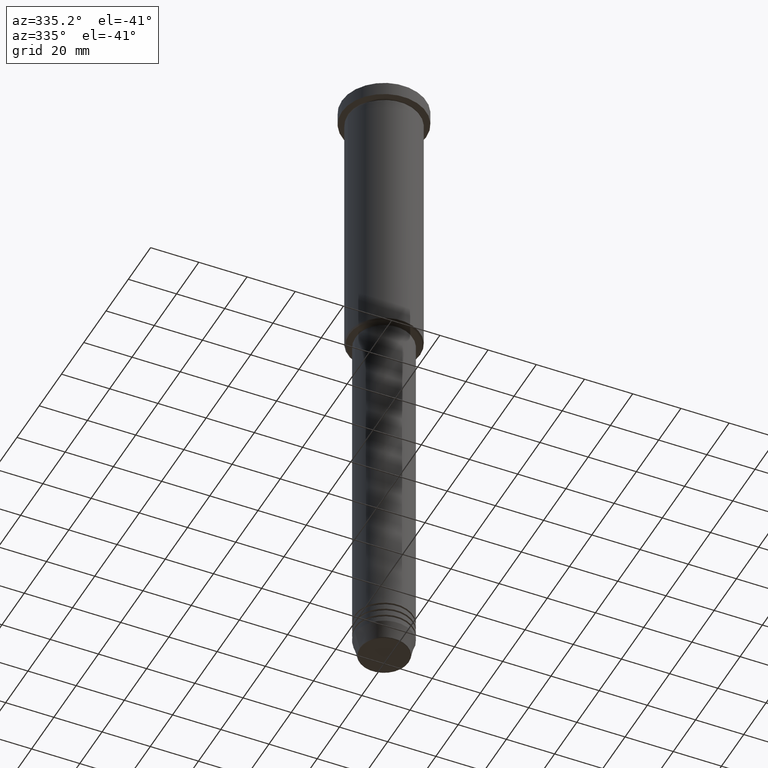
[diagram: clean part render]
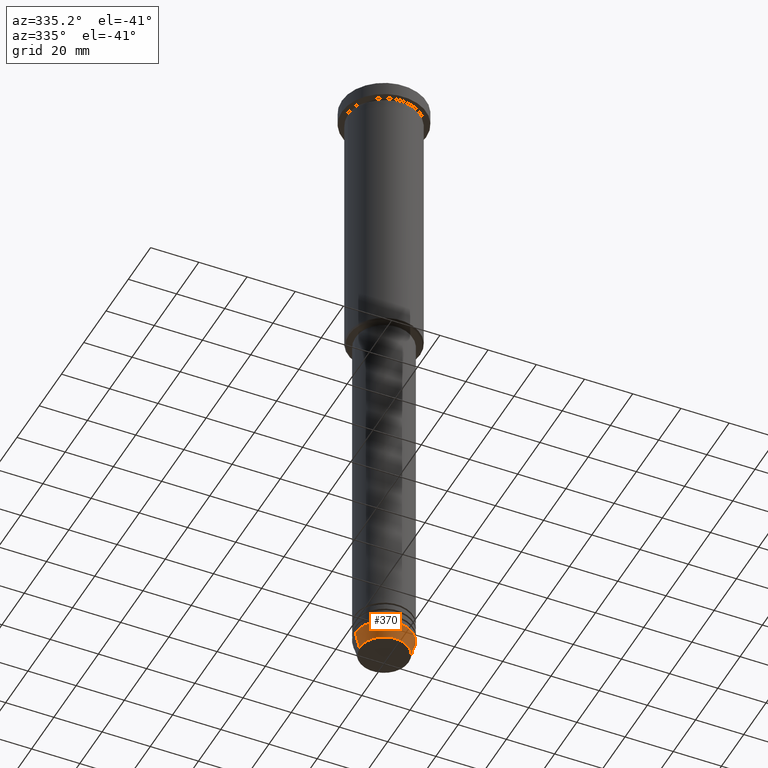
[diagram: same view with one face highlighted and labeled with its STEP entity id]
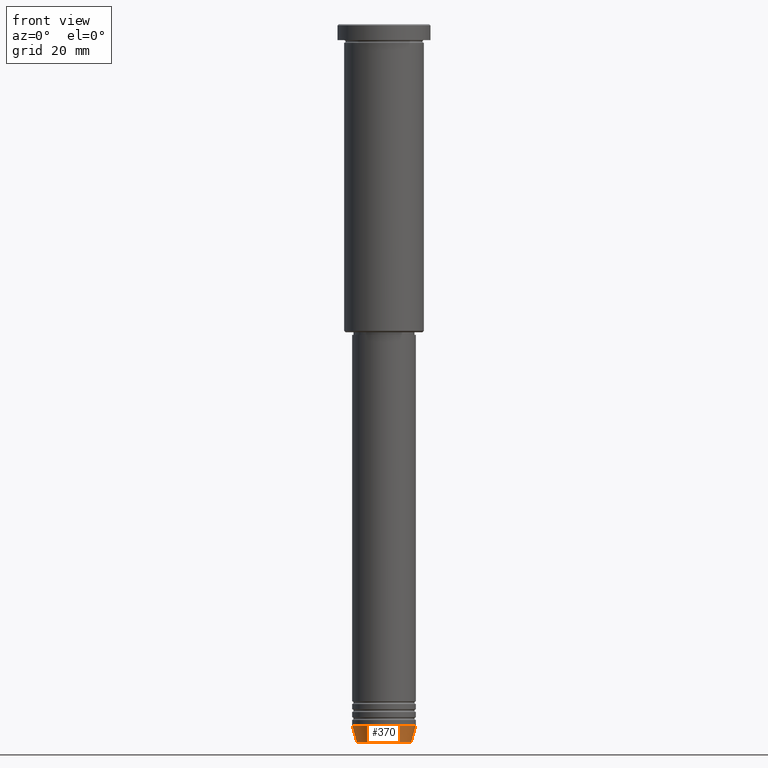
[diagram: same view with one face highlighted and labeled with its STEP entity id]
A machine part, auxiliary view. The second image highlights one B-rep face of the part: STEP entity #370.
A second angle (front view) of the same face is appended — the face is thin or edge-on in the first view.
In plain terms, the highlighted conical surface has half-angle 15 deg.
Its self-contained STEP definition (entity closure, byte-faithful):
#41 = EDGE_CURVE ( 'NONE', #375, #1084, #254, .T. ) ;
#92 = DIRECTION ( 'NONE',  ( -0.000000000000000000, -0.000000000000000000, 1.000000000000000000 ) ) ;
#103 = LINE ( 'NONE', #919, #159 ) ;
#144 = FACE_OUTER_BOUND ( 'NONE', #790, .T. ) ;
#159 = VECTOR ( 'NONE', #284, 1000.000000000000000 ) ;
#219 = ORIENTED_EDGE ( 'NONE', *, *, #590, .F. ) ;
#234 = CARTESIAN_POINT ( 'NONE',  ( 0.000000000000000000, 0.000000000000000000, -264.0000000000000000 ) ) ;
#254 = CIRCLE ( 'NONE', #1145, 10.22365507213719127 ) ;
#255 = DIRECTION ( 'NONE',  ( 1.000000000000000000, 0.000000000000000000, 0.000000000000000000 ) ) ;
#282 = DIRECTION ( 'NONE',  ( 1.000000000000000000, 0.000000000000000000, 0.000000000000000000 ) ) ;
#284 = DIRECTION ( 'NONE',  ( 0.2588190451025213501, 0.000000000000000000, 0.9659258262890680902 ) ) ;
#287 = VERTEX_POINT ( 'NONE', #407 ) ;
#350 = AXIS2_PLACEMENT_3D ( 'NONE', #234, #505, #600 ) ;
#355 = CARTESIAN_POINT ( 'NONE',  ( 0.000000000000000000, 0.000000000000000000, -270.6294095225512706 ) ) ;
#370 = ADVANCED_FACE ( 'NONE', ( #144 ), #921, .T. ) ;
#372 = DIRECTION ( 'NONE',  ( -0.2588190451025213501, 3.169619151431772337E-17, 0.9659258262890680902 ) ) ;
#375 = VERTEX_POINT ( 'NONE', #694 ) ;
#407 = CARTESIAN_POINT ( 'NONE',  ( 12.00000000000000000, 0.000000000000000000, -264.0000000000000000 ) ) ;
#451 = CARTESIAN_POINT ( 'NONE',  ( -12.00000000000000000, 1.469576158976823947E-15, -264.0000000000000000 ) ) ;
#505 = DIRECTION ( 'NONE',  ( -0.000000000000000000, -0.000000000000000000, 1.000000000000000000 ) ) ;
#544 = AXIS2_PLACEMENT_3D ( 'NONE', #545, #92, #282 ) ;
#545 = CARTESIAN_POINT ( 'NONE',  ( 0.000000000000000000, 0.000000000000000000, -264.0000000000000000 ) ) ;
#571 = CARTESIAN_POINT ( 'NONE',  ( 10.22365507213719127, 0.000000000000000000, -270.6294095225512706 ) ) ;
#590 = EDGE_CURVE ( 'NONE', #375, #852, #1019, .T. ) ;
#600 = DIRECTION ( 'NONE',  ( 1.000000000000000000, 0.000000000000000000, 0.000000000000000000 ) ) ;
#606 = EDGE_CURVE ( 'NONE', #1084, #287, #103, .T. ) ;
#628 = CARTESIAN_POINT ( 'NONE',  ( -12.00000000000000000, 1.469576158976823947E-15, -264.0000000000000000 ) ) ;
#631 = ORIENTED_EDGE ( 'NONE', *, *, #41, .T. ) ;
#685 = ORIENTED_EDGE ( 'NONE', *, *, #1042, .F. ) ;
#694 = CARTESIAN_POINT ( 'NONE',  ( -10.22365507213719127, 1.360806402472382744E-15, -270.6294095225512706 ) ) ;
#788 = VECTOR ( 'NONE', #372, 1000.000000000000000 ) ;
#790 = EDGE_LOOP ( 'NONE', ( #219, #631, #993, #685 ) ) ;
#820 = DIRECTION ( 'NONE',  ( -0.000000000000000000, -0.000000000000000000, 1.000000000000000000 ) ) ;
#852 = VERTEX_POINT ( 'NONE', #628 ) ;
#919 = CARTESIAN_POINT ( 'NONE',  ( 12.00000000000000000, 0.000000000000000000, -264.0000000000000000 ) ) ;
#921 = CONICAL_SURFACE ( 'NONE', #350, 12.00000000000000000, 0.2617993877991500740 ) ;
#993 = ORIENTED_EDGE ( 'NONE', *, *, #606, .T. ) ;
#1019 = LINE ( 'NONE', #451, #788 ) ;
#1042 = EDGE_CURVE ( 'NONE', #852, #287, #1113, .T. ) ;
#1084 = VERTEX_POINT ( 'NONE', #571 ) ;
#1113 = CIRCLE ( 'NONE', #544, 12.00000000000000000 ) ;
#1145 = AXIS2_PLACEMENT_3D ( 'NONE', #355, #820, #255 ) ;